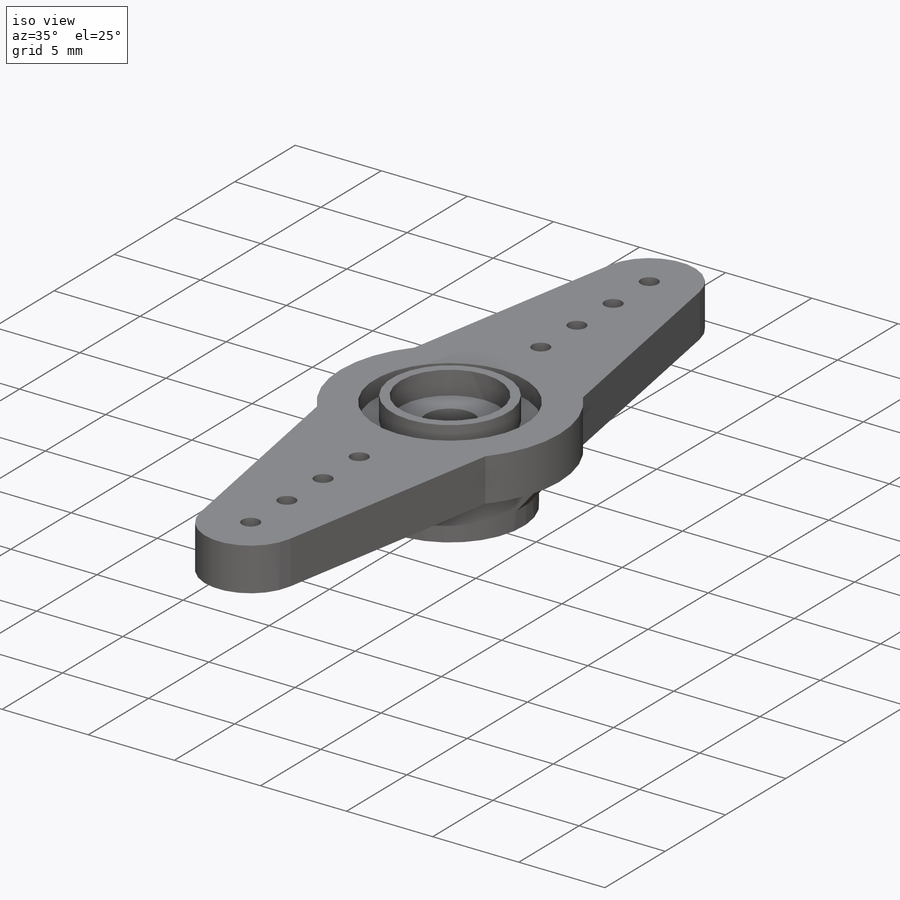
[diagram: iso view]
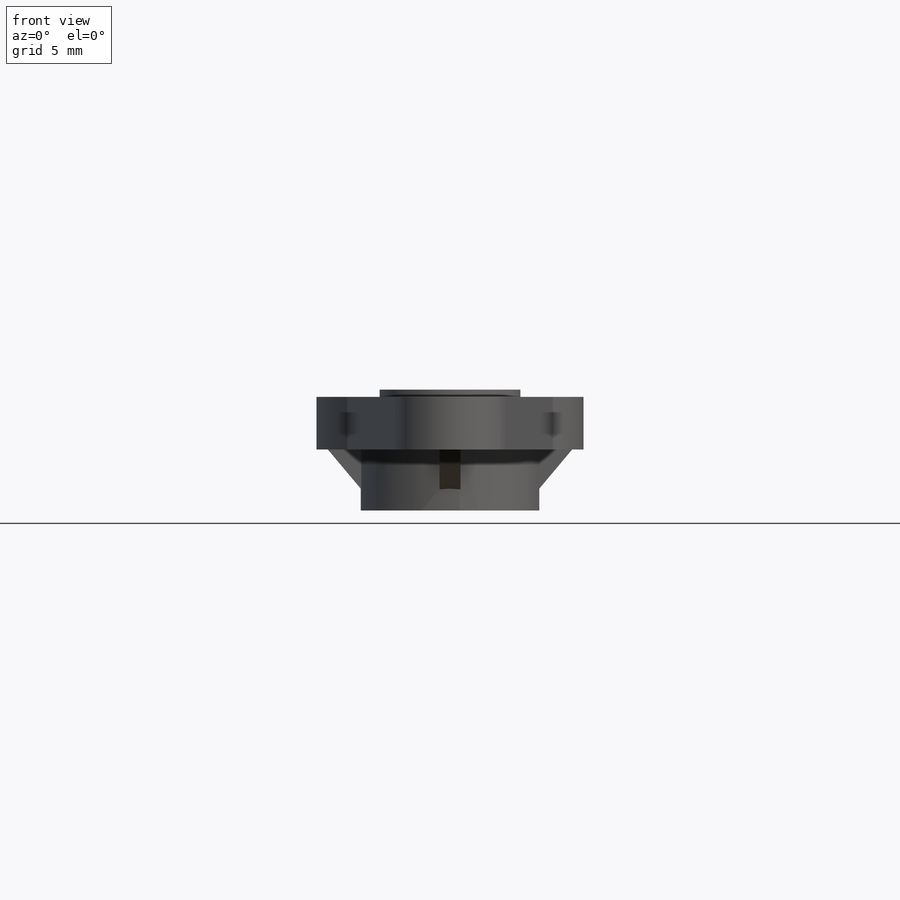
[diagram: front view]
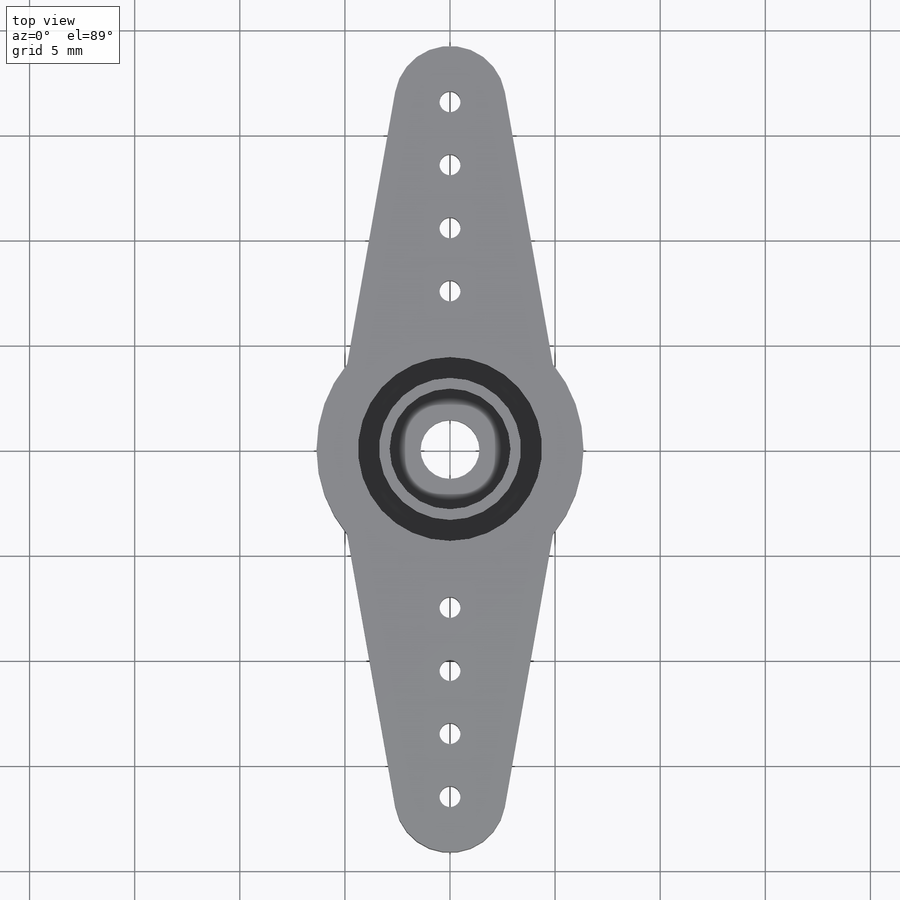
[diagram: top view]
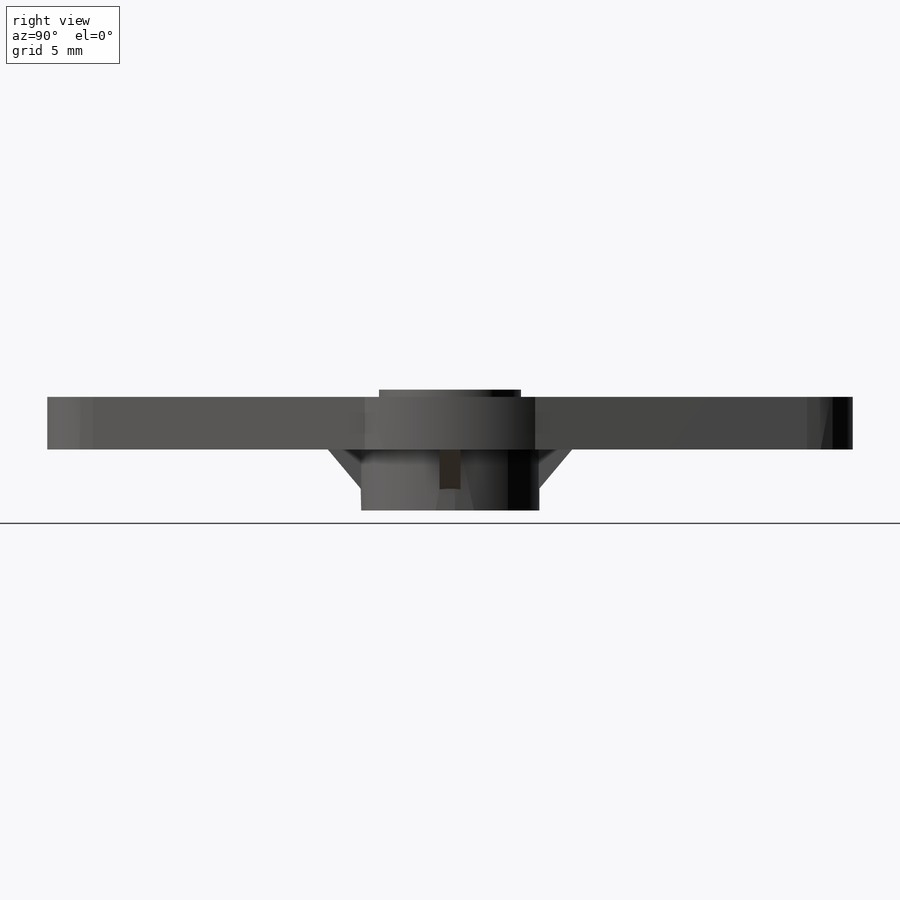
[diagram: right view]
SOLIDWORKS PART (.sldprt)
format: sldprt  version: not decoded by parser v0  size: 427,520 bytes
history: native  units: mm
features: sketch x12, cut_extrude x6, extrude x5, pattern_circular x2, material x1, pattern_linear x1, mirror x1 (+13 scaffold rows collapsed)
feature tree (41):
  scaffold x13  (default folders/planes/origin — collapsed)
  material  "Polyethylene Cross-Linked"
  sketch  "Sketch1"  dims[D1=12.7mm]
  extrude  "Boss-Extrude1"  Depth=5.4mm
  sketch  "Sketch2"  dims[c1.D1=5.3mm c1.D2=19.18mm c1.D3=~15.110883mm c2.D3=~20.80217deg c3.D3=~15.110883mm c4.D3=~20.80217deg c5.D3=15.62mm c6.D3=~10.401085deg c7.D3=15.62mm c8.D3=15.0deg c9.D3=15.62mm c10.D3=~10.401085deg c11.D3=15.62mm c12.D3=10.0deg c12.D4=~9.783225mm]
  extrude  "horn"  Depth=2.5mm
  sketch  "Sketch4"  dims[D1=2.8mm]
  cut_extrude  "Cut-Extrude1"  [1 undecoded]
  sketch  "Sketch5"  dims[D1=1.0mm]
  cut_extrude  "Cut-Extrude2"  [1 undecoded]
  sketch  "Sketch6"
  pattern_linear  "LPattern1"  Count1=4 Count2=1 Spacing1=3mm Spacing2=10mm
  mirror  "Mirror1"
  sketch  "Sketch8"  dims[c1.D1=5.8mm c1.D2=5.2mm c1.D3=~0.319735mm c2.D3=80.0deg c2.D1=0.3mm]
  cut_extrude  "Cut-Extrude4"  Depth=3mm
  pattern_circular  "CirPattern2"  Count=26 Angle=360deg
  sketch  "Sketch9"
  cut_extrude  "Cut-Extrude5"  Depth=3mm
  sketch  "Sketch10"  dims[D1=8.5mm]
  cut_extrude  "Cut-Extrude6"  [1 undecoded]
  sketch  "Sketch11"  dims[c1.D1=1.91mm c1.D2=1.4mm c1.D3=~2.126029mm c2.D3=~41.185925deg c2.D2=1.6mm c3.D2=40.0deg c3.D3=~1.342559mm c4.D2=0.05mm c4.D3=1.6mm c5.D3=40.0deg c5.D4=4.16mm]
  extrude  "Boss-Extrude5"  Depth=1mm
  pattern_circular  "CirPattern3"  Count=4 Angle=360deg
  sketch  "Sketch12"  dims[D1=8.75mm]
  cut_extrude  "Cut-Extrude7"  Depth=1mm
  sketch  "Sketch13"  dims[c1.D1=~5.71135mm c1.D2=6.75mm c2.D1=0.5mm]
  extrude  "Boss-Extrude6"  [1 undecoded]
  sketch  "Sketch14"
  extrude  "Boss-Extrude7"  Depth=0.35mm
decode coverage: 19 of 27 modeling features carry decoded parameters
note: ~ marks probable driven/reference dimensions
note: 4 parameter values undecoded
summary: no parameter record found for 4 features
note: suppression state not decoded; provenance and decode notes live in map.json
